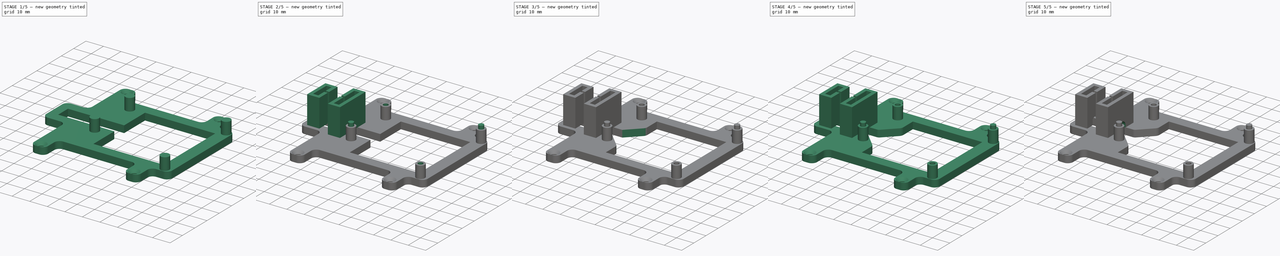
[diagram: build sequence overview — one tinted view per stage of 5, left to right]
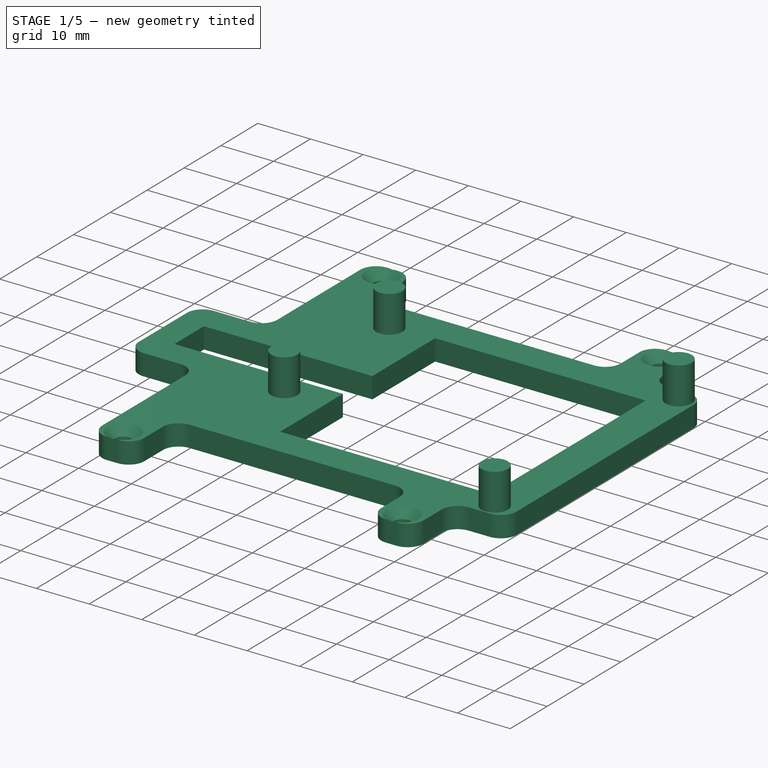
[diagram: stage 1 of 5 — iso view after this stage's code; geometry added in this stage tinted green]
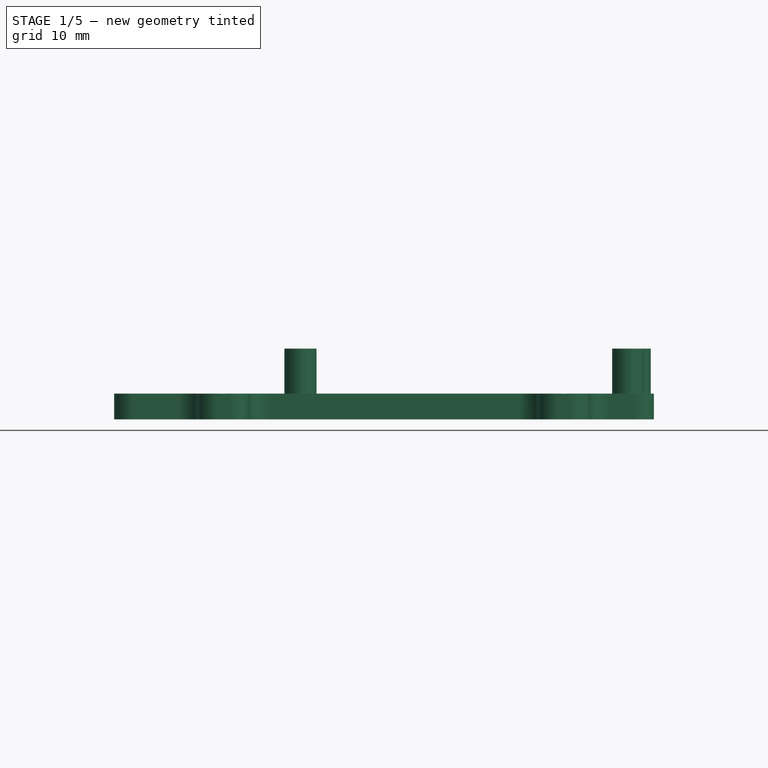
[diagram: stage 1 of 5 — front view after this stage's code; geometry added in this stage tinted green]
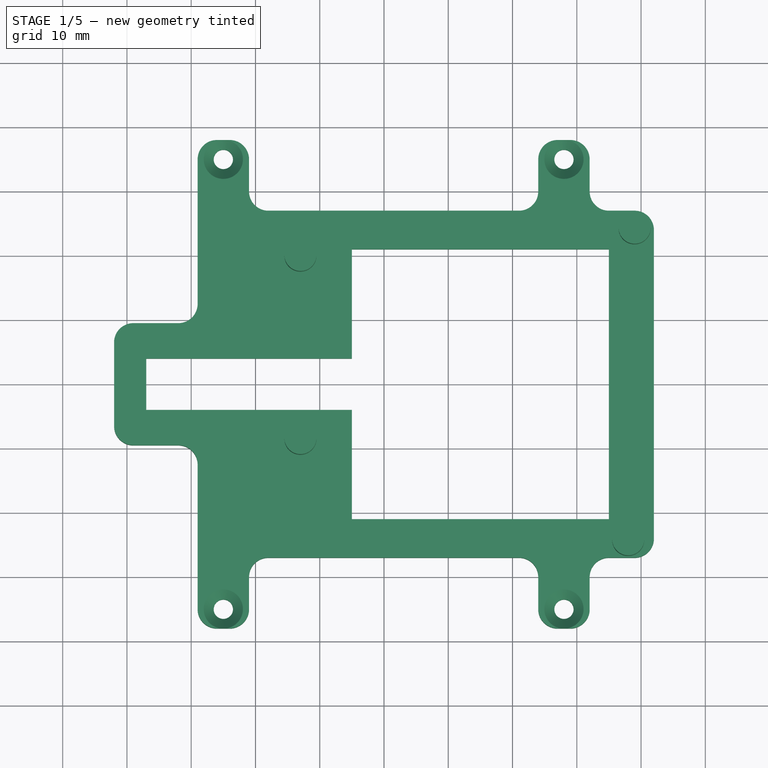
[diagram: stage 1 of 5 — top view after this stage's code; geometry added in this stage tinted green]
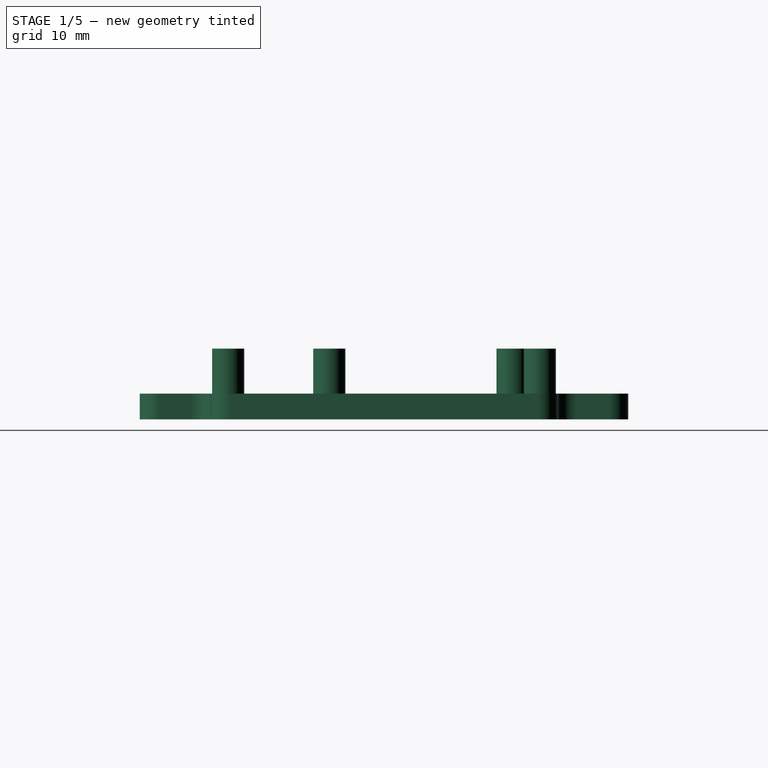
[diagram: stage 1 of 5 — right view after this stage's code; geometry added in this stage tinted green]
FCSTD DOCUMENT  (FreeCAD 0.21R33771 (Git))
Label: електронен блок
License: All rights reserved
LicenseURL: https://en.wikipedia.org/wiki/All_rights_reserved
objects: Sketcher::SketchObject×7, PartDesign::Chamfer×5, PartDesign::Pad×4, PartDesign::Fillet×4, PartDesign::Pocket×2, PartDesign::Hole×1, PartDesign::Body×1
note: 40 computed .brp shape members not serialized (recipe doc carries the construction recipe); baked Part::Feature solids carry a one-line shape summary decoded from their .brp

FEATURE [Sketcher::SketchObject] Sketch
  FullyConstrained = true
  MapMode = 5
  Support = -> [XY_Plane]
  sketch-geometry (48):
    g0: LineSegment StartX=42 StartY=-24 StartZ=0 EndX=42 EndY=24 EndZ=0
    g1: LineSegment StartX=39 StartY=27 StartZ=0 EndX=35 EndY=27 EndZ=0
    g2: LineSegment StartX=32 StartY=30 StartZ=0 EndX=32 EndY=35 EndZ=0
    g3: LineSegment StartX=29 StartY=38 StartZ=0 EndX=27 EndY=38 EndZ=0
    g4: LineSegment StartX=-29 StartY=35 StartZ=0 EndX=-29 EndY=12.5 EndZ=0
    g5: LineSegment StartX=-32 StartY=9.5 StartZ=0 EndX=-39 EndY=9.5 EndZ=0
    g6: LineSegment StartX=-29 StartY=-12.5 StartZ=0 EndX=-29 EndY=-35 EndZ=0
    g7: LineSegment StartX=-26 StartY=-38 StartZ=0 EndX=-24 EndY=-38 EndZ=0
    g8: LineSegment StartX=32 StartY=-35 StartZ=0 EndX=32 EndY=-30 EndZ=0
    g9: LineSegment StartX=35 StartY=-27 StartZ=0 EndX=39 EndY=-27 EndZ=0
    g10: ArcOfCircle CenterX=29 CenterY=35 CenterZ=0 NormalX=0 NormalY=0 NormalZ=1 AngleXU=0 Radius=3 StartAngle=2e-16 EndAngle=1.5708
    g11: ArcOfCircle CenterX=-26 CenterY=35 CenterZ=0 NormalX=0 NormalY=0 NormalZ=1 AngleXU=0 Radius=3 StartAngle=1.5708 EndAngle=3.14159
    g12: ArcOfCircle CenterX=35 CenterY=30 CenterZ=0 NormalX=0 NormalY=0 NormalZ=1 AngleXU=0 Radius=3 StartAngle=3.14159 EndAngle=4.71239
    g13: ArcOfCircle CenterX=39 CenterY=24 CenterZ=0 NormalX=0 NormalY=0 NormalZ=1 AngleXU=0 Radius=3 StartAngle=1e-16 EndAngle=1.5708
    g14: ArcOfCircle CenterX=39 CenterY=-24 CenterZ=0 NormalX=0 NormalY=0 NormalZ=1 AngleXU=0 Radius=3 StartAngle=4.71239 EndAngle=6.28319
    g15: ArcOfCircle CenterX=35 CenterY=-30 CenterZ=0 NormalX=0 NormalY=0 NormalZ=1 AngleXU=0 Radius=3 StartAngle=1.5708 EndAngle=3.14159
    g16: ArcOfCircle CenterX=29 CenterY=-35 CenterZ=0 NormalX=0 NormalY=0 NormalZ=1 AngleXU=0 Radius=3 StartAngle=4.71239 EndAngle=6.28319
    g17: ArcOfCircle CenterX=-26 CenterY=-35 CenterZ=0 NormalX=0 NormalY=0 NormalZ=1 AngleXU=0 Radius=3 StartAngle=3.14159 EndAngle=4.71239
    g18: ArcOfCircle CenterX=-32 CenterY=-12.5 CenterZ=0 NormalX=0 NormalY=0 NormalZ=1 AngleXU=0 Radius=3 StartAngle=0 EndAngle=1.5708
    g19: ArcOfCircle CenterX=-32 CenterY=12.5 CenterZ=0 NormalX=0 NormalY=0 NormalZ=1 AngleXU=0 Radius=3 StartAngle=4.71239 EndAngle=6.28319
    g20: LineSegment StartX=-32 StartY=-9.5 StartZ=0 EndX=-39 EndY=-9.5 EndZ=0
    g21: LineSegment StartX=-42 StartY=-6.5 StartZ=0 EndX=-42 EndY=6.5 EndZ=0
    g22: ArcOfCircle CenterX=-39 CenterY=6.5 CenterZ=0 NormalX=0 NormalY=0 NormalZ=1 AngleXU=0 Radius=3 StartAngle=1.5708 EndAngle=3.14159
    g23: ArcOfCircle CenterX=-39 CenterY=-6.5 CenterZ=0 NormalX=0 NormalY=0 NormalZ=1 AngleXU=0 Radius=3 StartAngle=3.14159 EndAngle=4.71239
    g24: LineSegment StartX=-21 StartY=35 StartZ=0 EndX=-21 EndY=30 EndZ=0
    g25: LineSegment StartX=-18 StartY=27 StartZ=0 EndX=21 EndY=27 EndZ=0
    g26: LineSegment StartX=24 StartY=30 StartZ=0 EndX=24 EndY=35 EndZ=0
    g27: LineSegment StartX=-24 StartY=38 StartZ=0 EndX=-26 EndY=38 EndZ=0
    g28: LineSegment StartX=-21 StartY=-35 StartZ=0 EndX=-21 EndY=-30 EndZ=0
    g29: LineSegment StartX=-18 StartY=-27 StartZ=0 EndX=21 EndY=-27 EndZ=0
    g30: LineSegment StartX=24 StartY=-30 StartZ=0 EndX=24 EndY=-35 EndZ=0
    g31: LineSegment StartX=27 StartY=-38 StartZ=0 EndX=29 EndY=-38 EndZ=0
    g32: ArcOfCircle CenterX=-24 CenterY=35 CenterZ=0 NormalX=0 NormalY=0 NormalZ=1 AngleXU=0 Radius=3 StartAngle=4e-16 EndAngle=1.5708
    g33: ArcOfCircle CenterX=27 CenterY=35 CenterZ=0 NormalX=0 NormalY=0 NormalZ=1 AngleXU=0 Radius=3 StartAngle=1.5708 EndAngle=3.14159
    g34: ArcOfCircle CenterX=-24 CenterY=-35 CenterZ=0 NormalX=0 NormalY=0 NormalZ=1 AngleXU=0 Radius=3 StartAngle=4.71239 EndAngle=6.28319
    g35: ArcOfCircle CenterX=27 CenterY=-35 CenterZ=0 NormalX=0 NormalY=0 NormalZ=1 AngleXU=0 Radius=3 StartAngle=3.14159 EndAngle=4.71239
    g36: ArcOfCircle CenterX=21 CenterY=-30 CenterZ=0 NormalX=0 NormalY=0 NormalZ=1 AngleXU=0 Radius=3 StartAngle=1e-16 EndAngle=1.5708
    g37: ArcOfCircle CenterX=-18 CenterY=-30 CenterZ=0 NormalX=0 NormalY=0 NormalZ=1 AngleXU=0 Radius=3 StartAngle=1.5708 EndAngle=3.14159
    g38: ArcOfCircle CenterX=-18 CenterY=30 CenterZ=0 NormalX=0 NormalY=0 NormalZ=1 AngleXU=0 Radius=3 StartAngle=3.14159 EndAngle=4.71239
    g39: ArcOfCircle CenterX=21 CenterY=30 CenterZ=0 NormalX=0 NormalY=0 NormalZ=1 AngleXU=0 Radius=3 StartAngle=4.71239 EndAngle=6.28319
    g40: LineSegment StartX=-5 StartY=21 StartZ=0 EndX=35 EndY=21 EndZ=0
    g41: LineSegment StartX=35 StartY=21 StartZ=0 EndX=35 EndY=-21 EndZ=0
    g42: LineSegment StartX=35 StartY=-21 StartZ=0 EndX=-5 EndY=-21 EndZ=0
    g43: LineSegment StartX=-5 StartY=-21 StartZ=0 EndX=-5 EndY=-4 EndZ=0
    g44: LineSegment StartX=-37 StartY=4 StartZ=0 EndX=-5 EndY=4 EndZ=0
    g45: LineSegment StartX=-5 StartY=-4 StartZ=0 EndX=-37 EndY=-4 EndZ=0
    g46: LineSegment StartX=-37 StartY=-4 StartZ=0 EndX=-37 EndY=4 EndZ=0
    g47: LineSegment StartX=-5 StartY=4 StartZ=0 EndX=-5 EndY=21 EndZ=0
  constraints (125):
    c: Vertical(g0)
    c: Horizontal(g1)
    c: Vertical(g2)
    c: Horizontal(g3)
    c: Vertical(g4)
    c: Horizontal(g5)
    c: Vertical(g6)
    c: Horizontal(g7)
    c: Vertical(g8)
    c: Horizontal(g9)
    c: Tangent(g3,g10) = -1.5708
    c: Tangent(g2,g10) = -1.5708
    c: Radius(g10) = 3
    c: DistanceX(g-1,g2) = 32
    c: DistanceY(g-1,g3) = 38
    c: Tangent(g4,g11) = -1.5708
    c: Coincident(g27,g11) = -1.5708
    c: Radius(g11) = 3
    c: Tangent(g2,g12) = 1.5708
    c: Tangent(g1,g12) = 1.5708
    c: Radius(g12) = 3
    c: DistanceY(g-1,g1) = 27
    c: Tangent(g1,g13) = -1.5708
    c: Tangent(g0,g13) = -1.5708
    c: Radius(g13) = 3
    c: DistanceX(g-1,g0) = 42
    c: Tangent(g9,g14) = -1.5708
    c: Tangent(g0,g14) = -1.5708
    c: Tangent(g9,g15) = 1.5708
    c: Tangent(g8,g15) = 1.5708
    c: Radius(g14) = 3
    c: Radius(g15) = 3
    c: Symmetric(g9,g1,g-1)
    c: Coincident(g31,g16) = -1.5708
    c: Tangent(g8,g16) = -1.5708
    c: Radius(g16) = 3
    c: Tangent(g7,g17) = -1.5708
    c: Tangent(g6,g17) = -1.5708
    c: Tangent(g6,g18) = 1.5708
    c: Tangent(g5,g19) = 1.5708
    c: Tangent(g4,g19) = 1.5708
    c: Radius(g19) = 3
    c: Radius(g18) = 3
    c: Radius(g17) = 3
    c: DistanceY(g-1,g5) = 9.5
    c: DistanceX(g6,g-1) = 29
    c: Tangent(g18,g20) = -1.5708
    c: Vertical(g21)
    c: Tangent(g5,g22) = -1.5708
    c: Tangent(g21,g22) = 1.5708
    c: Tangent(g21,g23) = 1.5708
    c: Tangent(g20,g23) = 1.5708
    c: Equal(g23,g22)
    c: Radius(g23) = 3
    c: Horizontal(g20)
    c: Vertical(g24)
    c: Horizontal(g25)
    c: Vertical(g26)
    c: Vertical(g28)
    c: Horizontal(g29)
    c: Vertical(g30)
    c: Tangent(g27,g32) = -1.5708
    c: Tangent(g24,g32) = 1.5708
    c: Radius(g32) = 3
    c: Tangent(g26,g33) = 1.5708
    c: Tangent(g3,g33) = -1.5708
    c: Tangent(g7,g34) = -1.5708
    c: Tangent(g28,g34) = -1.5708
    c: Tangent(g30,g35) = -1.5708
    c: Tangent(g31,g35) = -1.5708
    c: Tangent(g30,g36) = 1.5708
    c: Tangent(g29,g36) = 1.5708
    c: Tangent(g28,g37) = 1.5708
    c: Tangent(g29,g37) = 1.5708
    c: Tangent(g24,g38) = -1.5708
    c: Tangent(g25,g38) = -1.5708
    c: Tangent(g25,g39) = -1.5708
    c: Tangent(g26,g39) = -1.5708
    c: Horizontal(g27)
    c: DistanceY(g-1,g25) = 27
    c: Radius(g33) = 3
    c: Radius(g39) = 3
    c: Radius(g38) = 3
    c: DistanceX(g26,g2) = 8
    c: DistanceX(g4,g24) = 8
    c: DistanceY(g27) = 38
    c: DistanceX(g21,g-1) = 42
    c: DistanceY(g7,g-1) = 38
    c: Radius(g34) = 3
    c: DistanceX(g30,g8) = 8
    c: Horizontal(g31)
    c: Radius(g35) = 3
    c: Radius(g37) = 3
    c: DistanceY(g29,g-1) = 27
    c: Radius(g36) = 3
    c: DistanceY(g18,g-1) = 9.5
    c: DistanceX(g6,g28) = 8
    c: DistanceY(g31,g-1) = 38
    c: DistanceX(g4,g-1) = 29
    c: Equal(g27,g7)
    c: Coincident(g40,g41)
    c: Coincident(g41,g42)
    c: Coincident(g42,g43)
    c: Coincident(g47,g40)
    c: Horizontal(g40)
    c: Horizontal(g42)
    c: Vertical(g41)
    c: Vertical(g43)
    c: DistanceX(g-1,g40) = 35
    c: DistanceY(g-1,g40) = 21
    c: DistanceY(g41,g-1) = 21
    c: DistanceX(g40,g-1) = 5
    c: Coincident(g45,g46)
    c: Coincident(g46,g44)
    c: Horizontal(g44)
    c: Horizontal(g45)
    c: Vertical(g46)
    c: DistanceX(g21,g45) = 5
    c: DistanceY(g45,g-1) = 4
    c: DistanceY(g-1,g44) = 4
    c: Coincident(g43,g45)
    c: Coincident(g47,g44)
    c: DistanceX(g44,g44) = 32
    c: Equal(g45,g44)
    c: DistanceX(g-1,g16) = 29
FEATURE [PartDesign::Pad] Pad  label="основа"
  Direction = (0,0,1)
  Length = 4
  Length2 = 10
  Profile = -> Sketch
  ReferenceAxis = -> Sketch [N_Axis]
  Type = 0
FEATURE [Sketcher::SketchObject] Sketch001
  FullyConstrained = false
  MapMode = 5
  Placement = pos=(0,0,4) rot=(0,0,1;0rad)
  Support = -> [Pad]
  sketch-geometry (4):
    g0: Circle CenterX=-25 CenterY=35 CenterZ=0 NormalX=0 NormalY=0 NormalZ=1 AngleXU=0 Radius=1.5
    g1: Circle CenterX=28 CenterY=35 CenterZ=0 NormalX=0 NormalY=0 NormalZ=1 AngleXU=0 Radius=1.5
    g2: Circle CenterX=-25 CenterY=-35 CenterZ=0 NormalX=0 NormalY=0 NormalZ=1 AngleXU=0 Radius=1.5
    g3: Circle CenterX=28 CenterY=-35 CenterZ=0 NormalX=0 NormalY=0 NormalZ=1 AngleXU=0 Radius=1.5
  constraints (9):
    c: DistanceY(g-1,g0) = 35
    c: DistanceX(g0,g-1) = 25
    c: Symmetric(g0,g2,g-1)
    c: Diameter(g0) = 3
    c: Equal(g0,g2)
    c: Equal(g2,g3)
    c: Equal(g3,g1)
    c: DistanceX(g-1,g1) = 28
    c: Symmetric(g1,g3,g-1)
FEATURE [PartDesign::Hole] Hole  label="Крепежни отвори"
  BaseFeature = -> Pad
  CustomThreadClearance = 0
  Depth = 25
  DepthType = 0
  Diameter = 3
  DrillForDepth = false
  DrillPoint = 1
  DrillPointAngle = 118
  HoleCutCountersinkAngle = 90
  HoleCutCustomValues = false
  HoleCutDepth = 0
  HoleCutDiameter = 6.1
  HoleCutType = 2
  ModelThread = false
  Profile = -> Sketch001
  Tapered = false
  TaperedAngle = 90
  ThreadClass = 0
  ThreadDepth = 25
  ThreadDepthType = 0
  ThreadDirection = 0
  ThreadFit = 0
  ThreadSize = 0
  ThreadType = 0
  Threaded = false
  UseCustomThreadClearance = false
FEATURE [Sketcher::SketchObject] Sketch002
  FullyConstrained = true
  MapMode = 5
  Placement = pos=(0,0,4) rot=(0,0,1;0rad)
  Support = -> [Hole]
  sketch-geometry (4):
    g0: Circle CenterX=39 CenterY=24.25 CenterZ=0 NormalX=0 NormalY=0 NormalZ=1 AngleXU=0 Radius=2.5
    g1: Circle CenterX=38 CenterY=-24.25 CenterZ=0 NormalX=0 NormalY=0 NormalZ=1 AngleXU=0 Radius=2.5
    g2: Circle CenterX=-13 CenterY=20 CenterZ=0 NormalX=0 NormalY=0 NormalZ=1 AngleXU=0 Radius=2.5
    g3: Circle CenterX=-13 CenterY=-8.5 CenterZ=0 NormalX=0 NormalY=0 NormalZ=1 AngleXU=0 Radius=2.5
  constraints (12):
    c: Equal(g2,g3)
    c: Equal(g2,g1)
    c: Equal(g2,g0)
    c: Diameter(g2) = 5
    c: DistanceX(g-1,g0) = 39
    c: DistanceY(g-1,g0) = 24.25
    c: DistanceY(g1,g-1) = 24.25
    c: DistanceX(g-1,g1) = 38
    c: DistanceY(g-1,g2) = 20
    c: DistanceY(g3,g-1) = 8.5
    c: DistanceX(g2,g-1) = 13
    c: DistanceX(g3,g-1) = 13
FEATURE [PartDesign::Pad] Pad001  label="Колонки"
  BaseFeature = -> Hole
  Direction = (0,0,1)
  Length = 7
  Length2 = 10
  Profile = -> Sketch002
  ReferenceAxis = -> Sketch002 [N_Axis]
  Type = 0
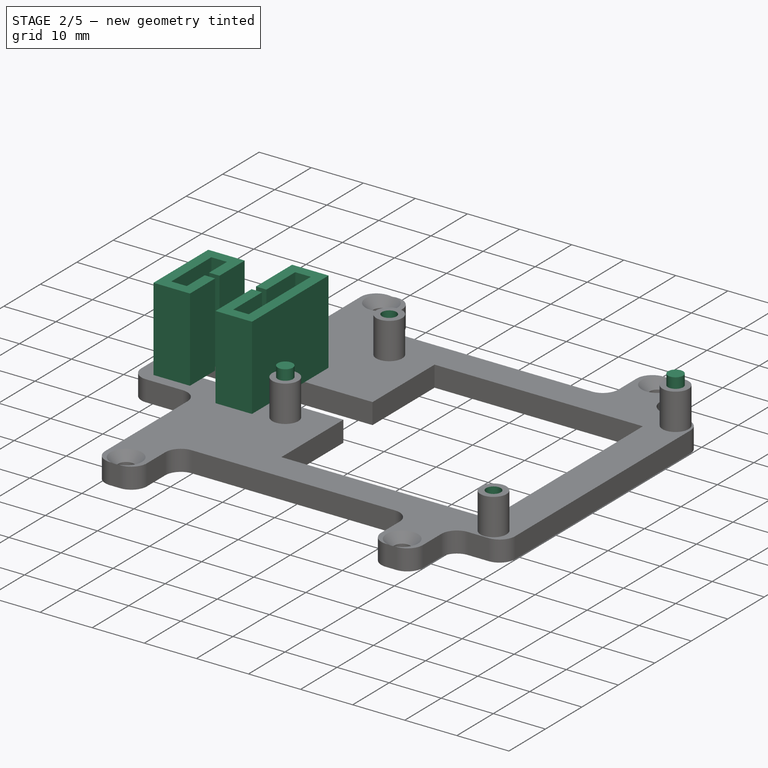
[diagram: stage 2 of 5 — iso view after this stage's code; geometry added in this stage tinted green]
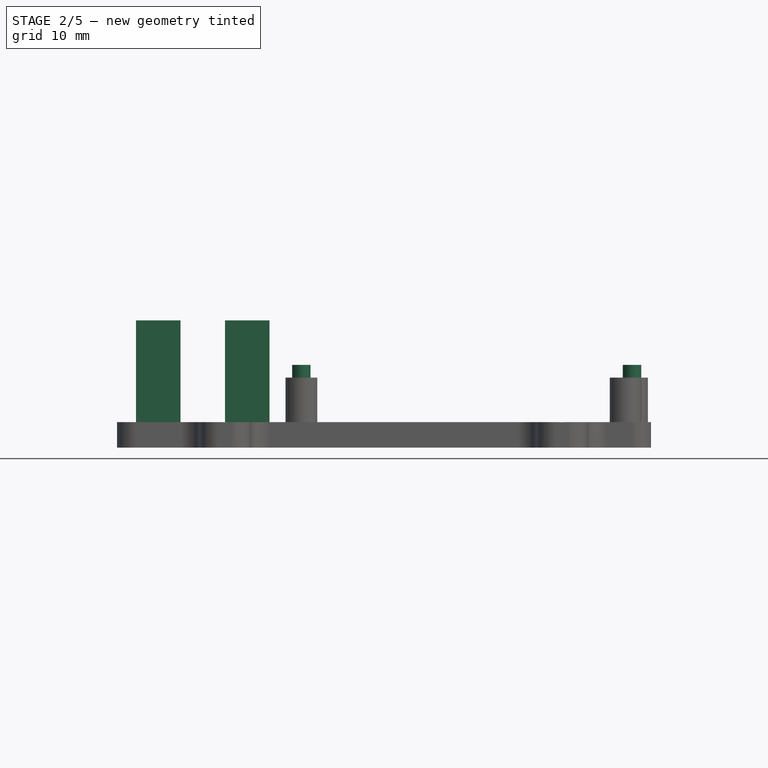
[diagram: stage 2 of 5 — front view after this stage's code; geometry added in this stage tinted green]
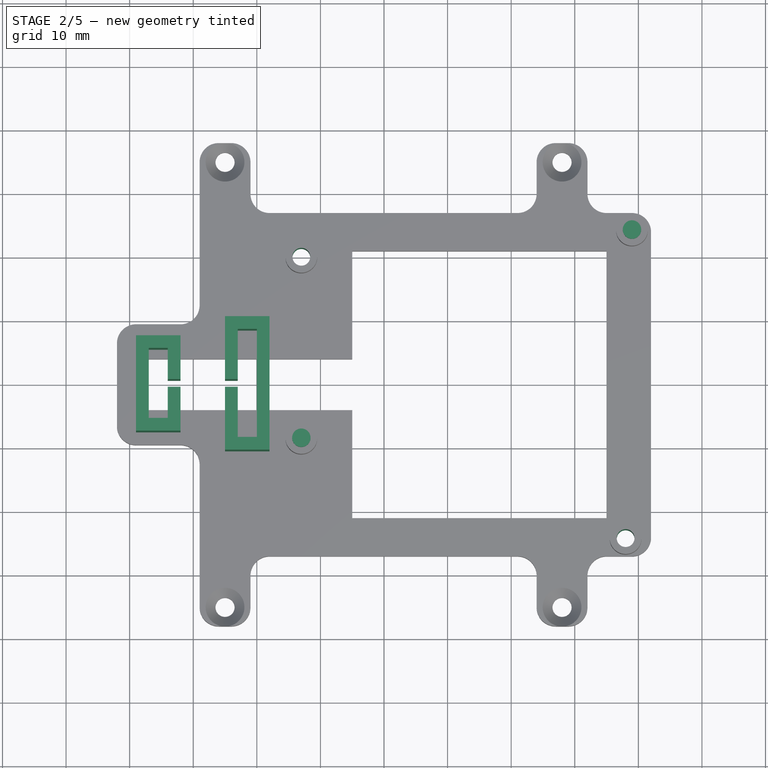
[diagram: stage 2 of 5 — top view after this stage's code; geometry added in this stage tinted green]
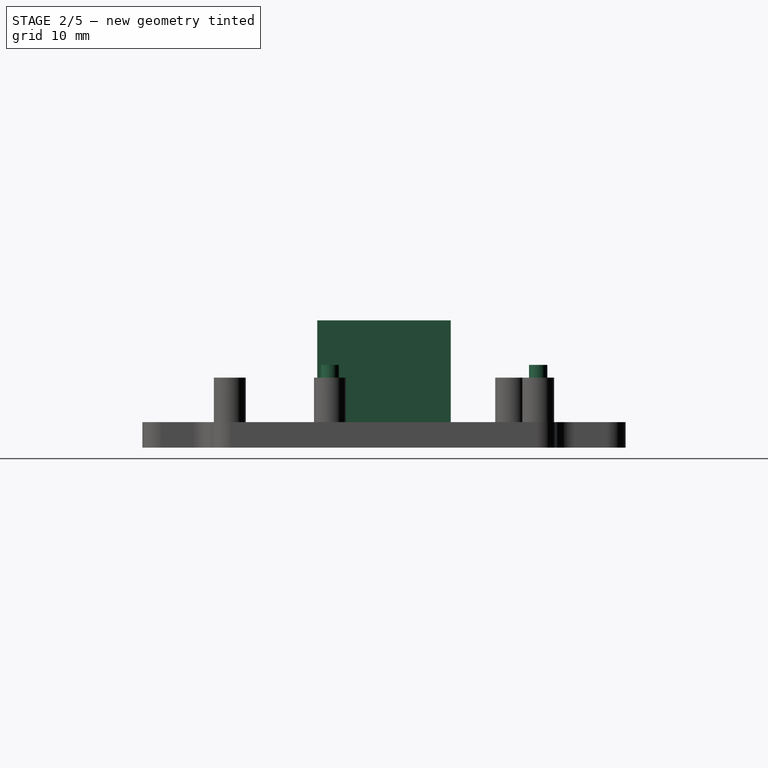
[diagram: stage 2 of 5 — right view after this stage's code; geometry added in this stage tinted green]
FEATURE [Sketcher::SketchObject] Sketch003
  FullyConstrained = true
  MapMode = 5
  Placement = pos=(0,0,11) rot=(0,0,1;0rad)
  Support = -> [Pad001]
  sketch-geometry (2):
    g0: Circle CenterX=-13 CenterY=-8.5 CenterZ=0 NormalX=0 NormalY=0 NormalZ=1 AngleXU=0 Radius=1.45
    g1: Circle CenterX=39 CenterY=24.25 CenterZ=0 NormalX=0 NormalY=0 NormalZ=1 AngleXU=0 Radius=1.45
  constraints (6):
    c: DistanceX(g0,g-1) = 13
    c: DistanceY(g0,g-1) = 8.5
    c: Diameter(g0) = 2.9
    c: DistanceX(g-1,g1) = 39
    c: DistanceY(g-1,g1) = 24.25
    c: Diameter(g1) = 2.9
FEATURE [PartDesign::Pad] Pad002  label="Щифтове"
  BaseFeature = -> Pad001
  Direction = (0,0,1)
  Length = 2
  Length2 = 10
  Profile = -> Sketch003
  ReferenceAxis = -> Sketch003 [N_Axis]
  Type = 0
FEATURE [Sketcher::SketchObject] Sketch004
  FullyConstrained = true
  MapMode = 5
  Placement = pos=(0,0,11) rot=(0,0,1;0rad)
  Support = -> [Pad002]
  sketch-geometry (2):
    g0: Circle CenterX=-13 CenterY=20 CenterZ=0 NormalX=0 NormalY=0 NormalZ=1 AngleXU=0 Radius=1.4
    g1: Circle CenterX=38 CenterY=-24.25 CenterZ=0 NormalX=0 NormalY=0 NormalZ=1 AngleXU=0 Radius=1.4
  constraints (6):
    c: DistanceX(g0,g-1) = 13
    c: DistanceY(g-1,g0) = 20
    c: Diameter(g0) = 2.8
    c: DistanceY(g1,g-1) = 24.25
    c: DistanceX(g-1,g1) = 38
    c: Diameter(g1) = 2.8
FEATURE [PartDesign::Pocket] Pocket
  BaseFeature = -> Pad002
  Direction = (0,0,-1)
  Length = 11
  Length2 = 5
  Profile = -> Sketch004
  ReferenceAxis = -> Sketch004 [N_Axis]
  Type = 0
FEATURE [Sketcher::SketchObject] Sketch005
  FullyConstrained = true
  MapMode = 5
  Placement = pos=(0,0,4) rot=(0,0,1;0rad)
  Support = -> [Pocket]
  sketch-geometry (24):
    g0: LineSegment StartX=-39 StartY=7.5 StartZ=0 EndX=-32 EndY=7.5 EndZ=0
    g1: LineSegment StartX=-32 StartY=7.5 StartZ=0 EndX=-32 EndY=0.6 EndZ=0
    g2: LineSegment StartX=-32 StartY=-7.5 StartZ=0 EndX=-39 EndY=-7.5 EndZ=0
    g3: LineSegment StartX=-39 StartY=-7.5 StartZ=0 EndX=-39 EndY=7.5 EndZ=0
    g4: LineSegment StartX=-37 StartY=5.5 StartZ=0 EndX=-34 EndY=5.5 EndZ=0
    g5: LineSegment StartX=-34 StartY=5.5 StartZ=0 EndX=-34 EndY=0.6 EndZ=0
    g6: LineSegment StartX=-34 StartY=-5.5 StartZ=0 EndX=-37 EndY=-5.5 EndZ=0
    g7: LineSegment StartX=-37 StartY=-5.5 StartZ=0 EndX=-37 EndY=5.5 EndZ=0
    g8: LineSegment StartX=-23 StartY=8.5 StartZ=0 EndX=-20 EndY=8.5 EndZ=0
    g9: LineSegment StartX=-20 StartY=8.5 StartZ=0 EndX=-20 EndY=-8.5 EndZ=0
    g10: LineSegment StartX=-20 StartY=-8.5 StartZ=0 EndX=-23 EndY=-8.5 EndZ=0
    g11: LineSegment StartX=-23 StartY=-8.5 StartZ=0 EndX=-23 EndY=-0.6 EndZ=0
    g12: LineSegment StartX=-25 StartY=10.5 StartZ=0 EndX=-18 EndY=10.5 EndZ=0
    g13: LineSegment StartX=-18 StartY=10.5 StartZ=0 EndX=-18 EndY=-10.5 EndZ=0
    g14: LineSegment StartX=-18 StartY=-10.5 StartZ=0 EndX=-25 EndY=-10.5 EndZ=0
    g15: LineSegment StartX=-25 StartY=-10.5 StartZ=0 EndX=-25 EndY=-0.6 EndZ=0
    g16: LineSegment StartX=-34 StartY=0.6 StartZ=0 EndX=-32 EndY=0.6 EndZ=0
    g17: LineSegment StartX=-34 StartY=-0.6 StartZ=0 EndX=-32 EndY=-0.6 EndZ=0
    g18: LineSegment StartX=-32 StartY=-0.6 StartZ=0 EndX=-32 EndY=-7.5 EndZ=0
    g19: LineSegment StartX=-34 StartY=-0.6 StartZ=0 EndX=-34 EndY=-5.5 EndZ=0
    g20: LineSegment StartX=-25 StartY=-0.6 StartZ=0 EndX=-23 EndY=-0.6 EndZ=0
    g21: LineSegment StartX=-23 StartY=0.6 StartZ=0 EndX=-25 EndY=0.6 EndZ=0
    g22: LineSegment StartX=-25 StartY=0.6 StartZ=0 EndX=-25 EndY=10.5 EndZ=0
    g23: LineSegment StartX=-23 StartY=0.6 StartZ=0 EndX=-23 EndY=8.5 EndZ=0
  constraints (72):
    c: Coincident(g0,g1)
    c: Coincident(g18,g2)
    c: Coincident(g2,g3)
    c: Coincident(g3,g0)
    c: Horizontal(g0)
    c: Horizontal(g2)
    c: Vertical(g1)
    c: Vertical(g3)
    c: Coincident(g4,g5)
    c: Coincident(g19,g6)
    c: Coincident(g6,g7)
    c: Coincident(g7,g4)
    c: Horizontal(g4)
    c: Horizontal(g6)
    c: Vertical(g5)
    c: Vertical(g7)
    c: DistanceY(g7,g7) = 11
    c: DistanceX(g4,g4) = 3
    c: DistanceX(g6,g-1) = 37
    c: DistanceY(g-1,g4) = 5.5
    c: DistanceX(g2,g6) = 2
    c: DistanceY(g2,g6) = 2
    c: DistanceY(g4,g0) = 2
    c: DistanceX(g4,g0) = 2
    c: Coincident(g8,g9)
    c: Coincident(g9,g10)
    c: Coincident(g10,g11)
    c: Coincident(g23,g8)
    c: Horizontal(g8)
    c: Horizontal(g10)
    c: Vertical(g9)
    c: Vertical(g11)
    c: Coincident(g12,g13)
    c: Coincident(g13,g14)
    c: Coincident(g14,g15)
    c: Coincident(g22,g12)
    c: Horizontal(g12)
    c: Horizontal(g14)
    c: Vertical(g13)
    c: Vertical(g15)
    c: DistanceX(g10,g10) = 3
    c: DistanceY(g9,g9) = 17
    c: DistanceY(g-1,g12) = 10.5
    c: DistanceX(g8,g12) = 2
    c: DistanceY(g8,g12) = 2
    c: DistanceX(g12,g8) = 2
    c: DistanceY(g14,g10) = 2
    c: DistanceX(g13,g-1) = 18
    c: Horizontal(g16)
    c: Horizontal(g17)
    c: DistanceY(g17,g16) = 1.2
    c: DistanceY(g-1,g16) = 0.6
    c: Coincident(g1,g16)
    c: Coincident(g18,g17)
    c: Coincident(g5,g16)
    c: Coincident(g19,g17)
    c: Horizontal(g20)
    c: Horizontal(g21)
    c: DistanceY(g20,g21) = 1.2
    c: DistanceY(g20,g-1) = 0.6
    c: Coincident(g15,g20)
    c: Coincident(g22,g21)
    c: Coincident(g11,g20)
    c: Coincident(g23,g21)
    c: Vertical(g23)
    c: Vertical(g22)
    c: DistanceX(g21,g8) = 3
    c: DistanceX(g15,g11) = 2
    c: DistanceX(g17,g17) = 2
    c: DistanceX(g6,g6) = 3
    c: Vertical(g19)
    c: Vertical(g18)
FEATURE [PartDesign::Pad] Pad003  label="слотове"
  BaseFeature = -> Pocket
  Direction = (0,0,1)
  Length = 16
  Length2 = 10
  Profile = -> Sketch005
  ReferenceAxis = -> Sketch005 [N_Axis]
  Type = 0
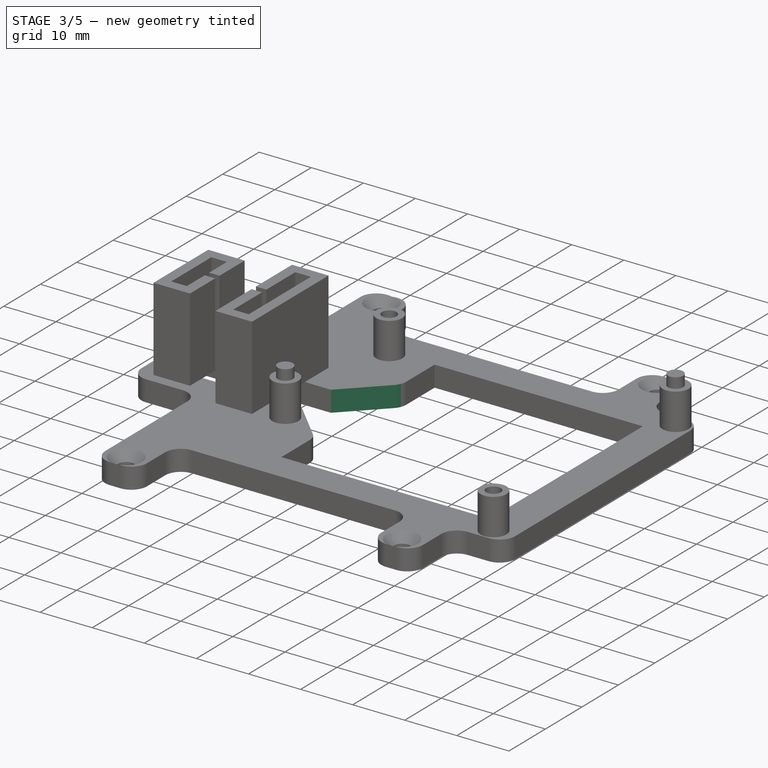
[diagram: stage 3 of 5 — iso view after this stage's code; geometry added in this stage tinted green]
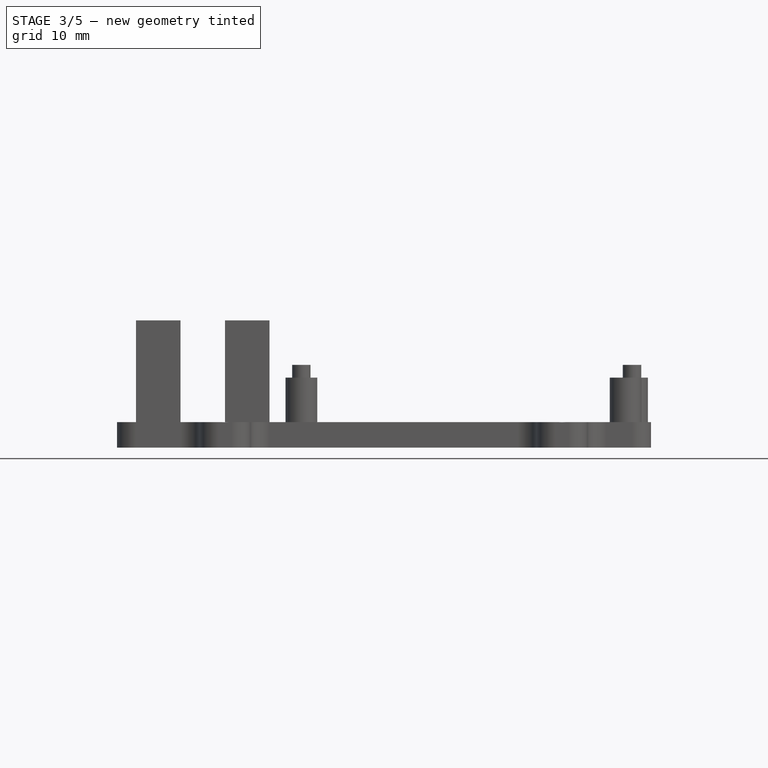
[diagram: stage 3 of 5 — front view after this stage's code; geometry added in this stage tinted green]
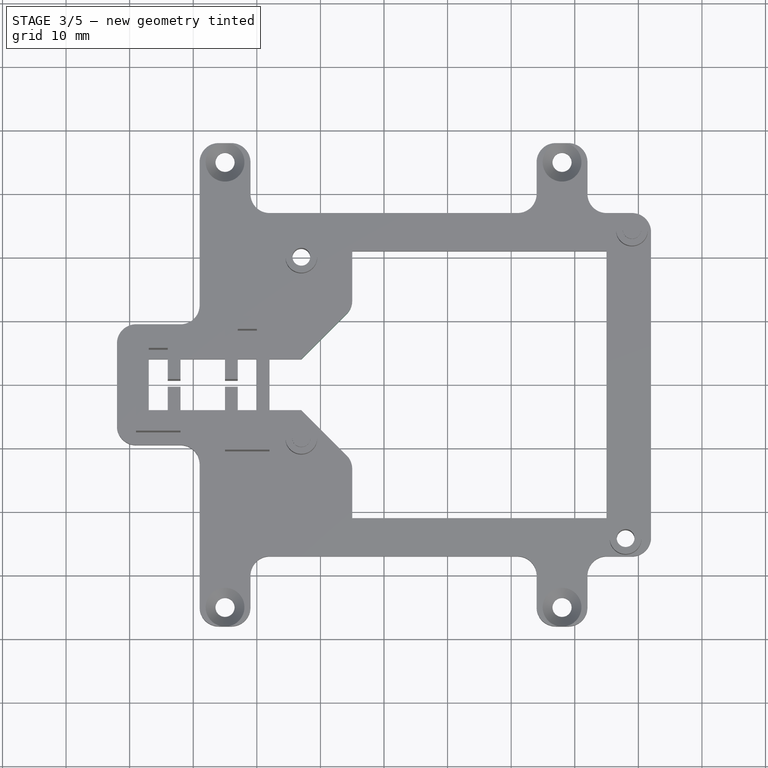
[diagram: stage 3 of 5 — top view after this stage's code; geometry added in this stage tinted green]
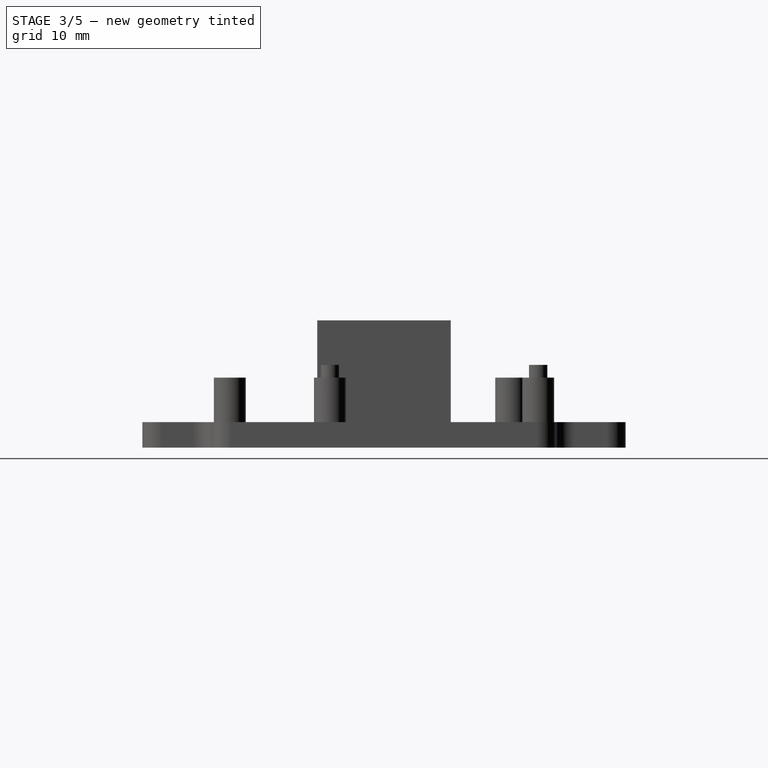
[diagram: stage 3 of 5 — right view after this stage's code; geometry added in this stage tinted green]
FEATURE [PartDesign::Chamfer] Chamfer
  Angle = 45
  Base = -> Pad003 [Edge183]
  BaseFeature = -> Pad003
  ChamferType = 0
  FlipDirection = false
  Size = 8
  Size2 = 1
  SupportTransform = false
  UseAllEdges = false
FEATURE [PartDesign::Chamfer] Chamfer001
  Angle = 45
  Base = -> Chamfer [Edge77]
  BaseFeature = -> Chamfer
  ChamferType = 0
  FlipDirection = false
  Size = 8
  Size2 = 1
  SupportTransform = false
  UseAllEdges = false
FEATURE [PartDesign::Fillet] Fillet
  Base = -> Chamfer001 [Edge66]
  BaseFeature = -> Chamfer001
  Radius = 3
  SupportTransform = false
  UseAllEdges = false
FEATURE [PartDesign::Fillet] Fillet001
  Base = -> Fillet [Edge87]
  BaseFeature = -> Fillet
  Radius = 3
  SupportTransform = false
  UseAllEdges = false
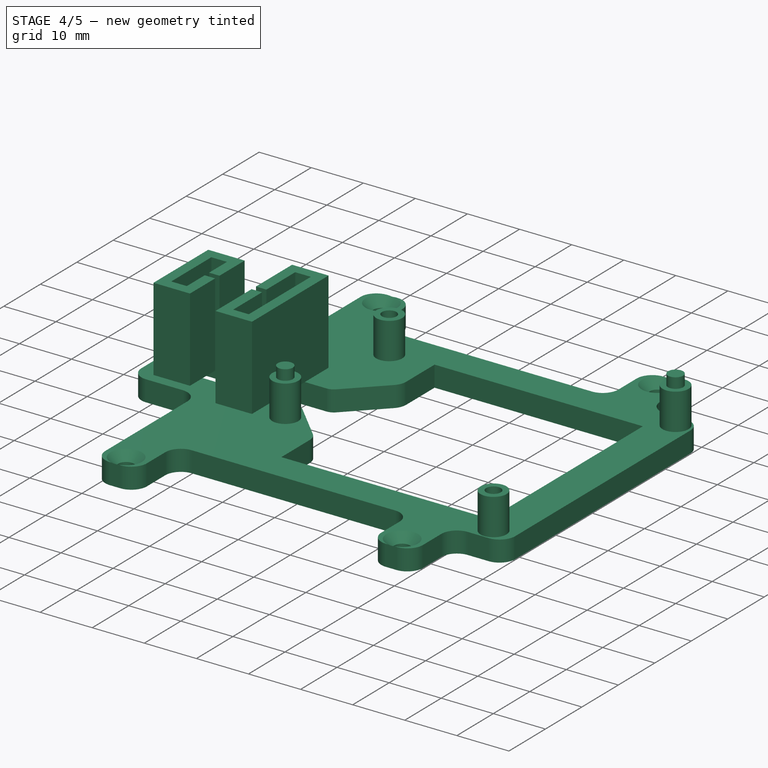
[diagram: stage 4 of 5 — iso view after this stage's code; geometry added in this stage tinted green]
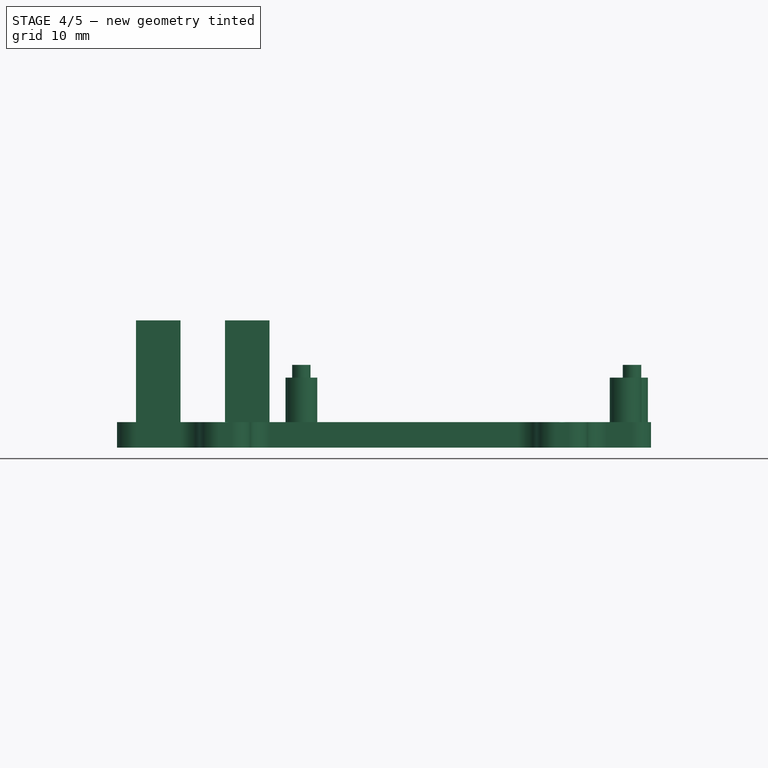
[diagram: stage 4 of 5 — front view after this stage's code; geometry added in this stage tinted green]
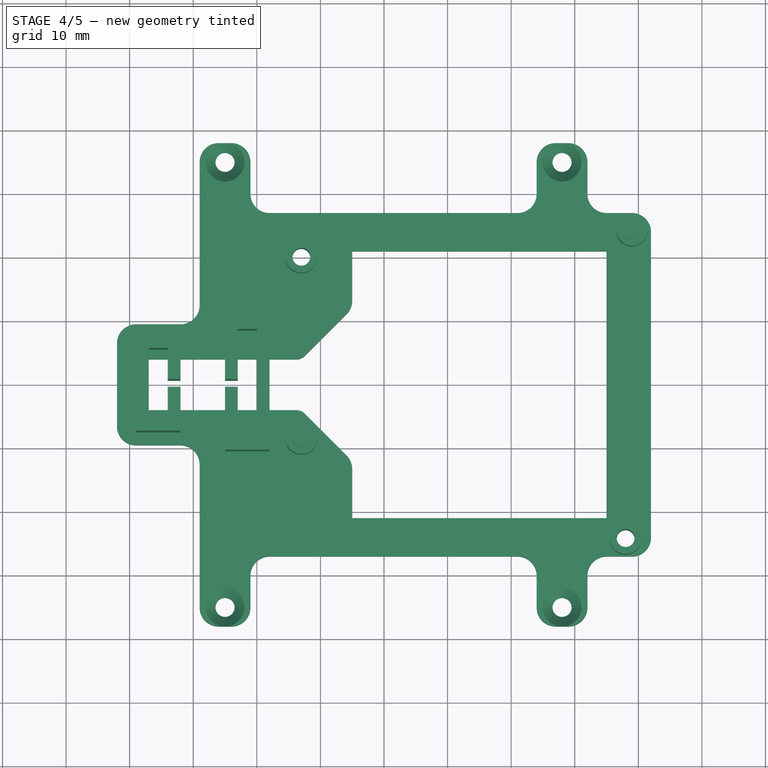
[diagram: stage 4 of 5 — top view after this stage's code; geometry added in this stage tinted green]
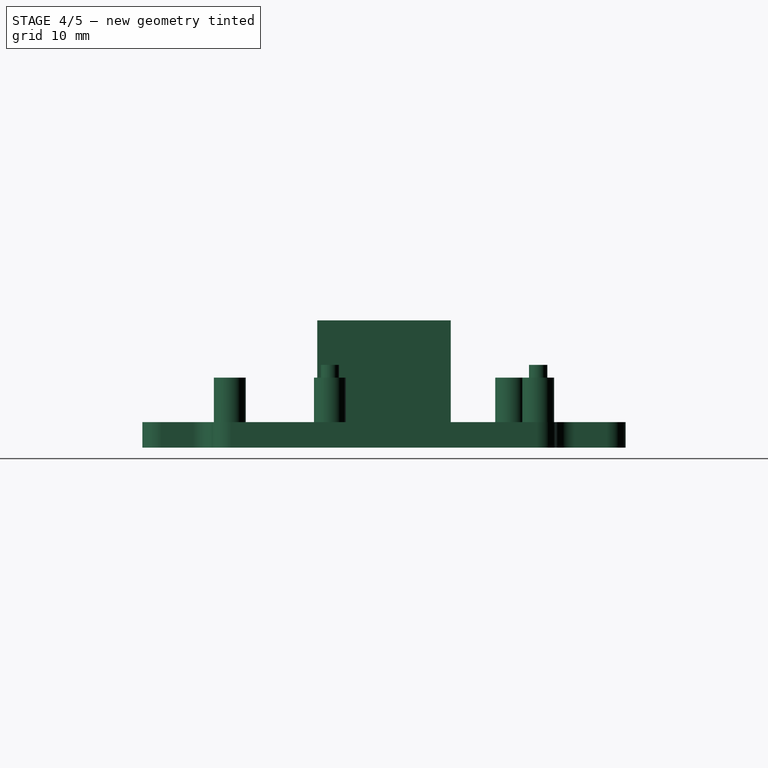
[diagram: stage 4 of 5 — right view after this stage's code; geometry added in this stage tinted green]
FEATURE [PartDesign::Fillet] Fillet002
  Base = -> Fillet001 [Edge78]
  BaseFeature = -> Fillet001
  Radius = 2
  SupportTransform = false
  UseAllEdges = false
FEATURE [PartDesign::Fillet] Fillet003
  Base = -> Fillet002 [Edge75]
  BaseFeature = -> Fillet002
  Radius = 2
  SupportTransform = false
  UseAllEdges = false
FEATURE [PartDesign::Chamfer] Chamfer003
  Angle = 45
  Base = -> Fillet003
  BaseFeature = -> Fillet003
  ChamferType = 0
  FlipDirection = false
  Size = 2
  Size2 = 1
  SupportTransform = false
  UseAllEdges = false
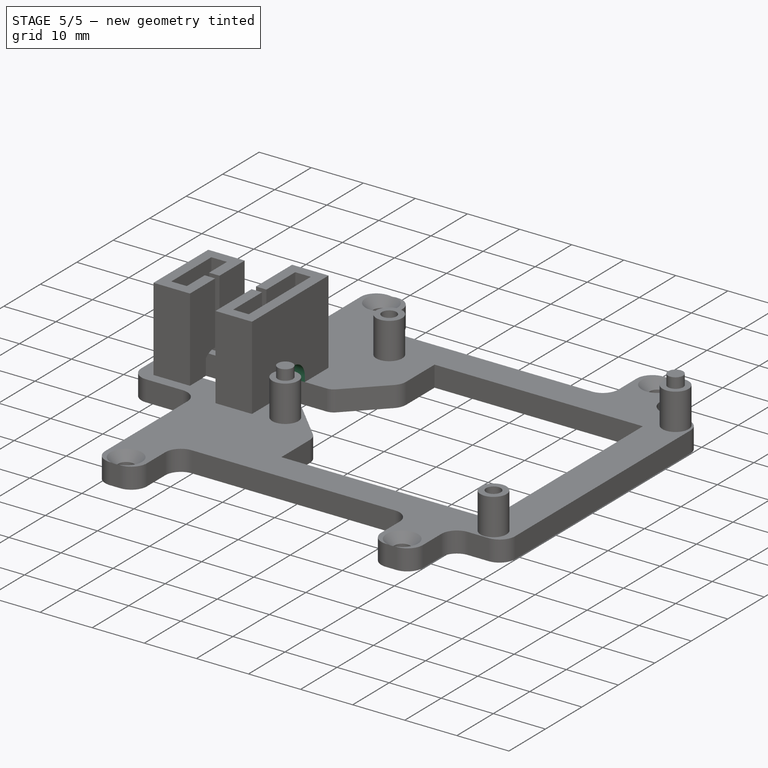
[diagram: stage 5 of 5 — iso view after this stage's code; geometry added in this stage tinted green]
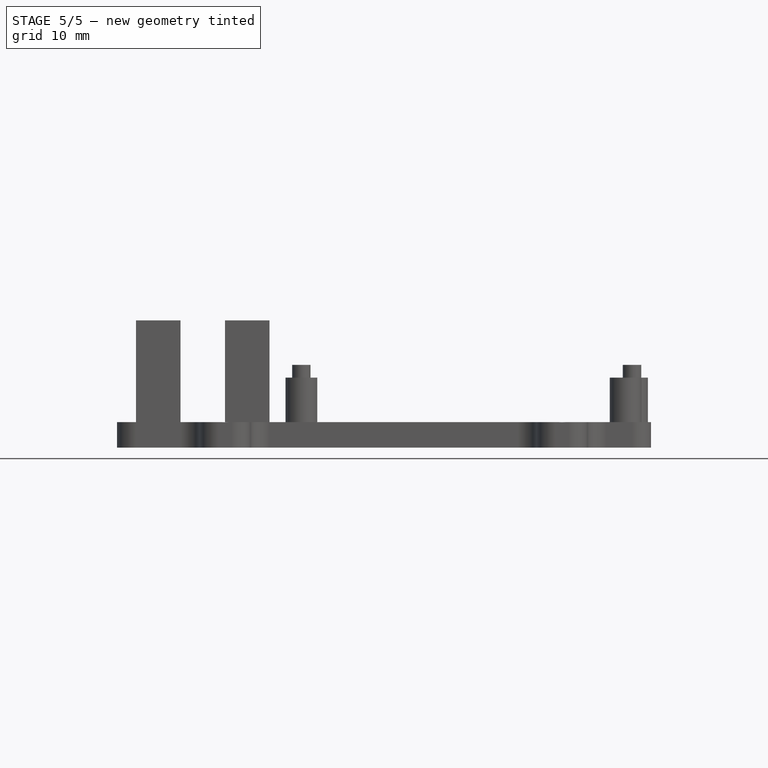
[diagram: stage 5 of 5 — front view after this stage's code; geometry added in this stage tinted green]
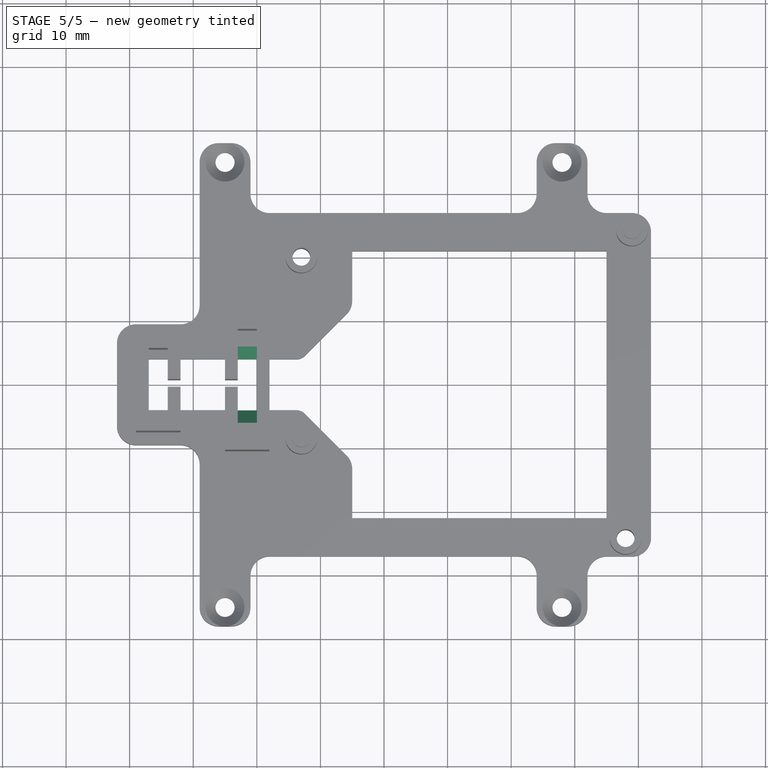
[diagram: stage 5 of 5 — top view after this stage's code; geometry added in this stage tinted green]
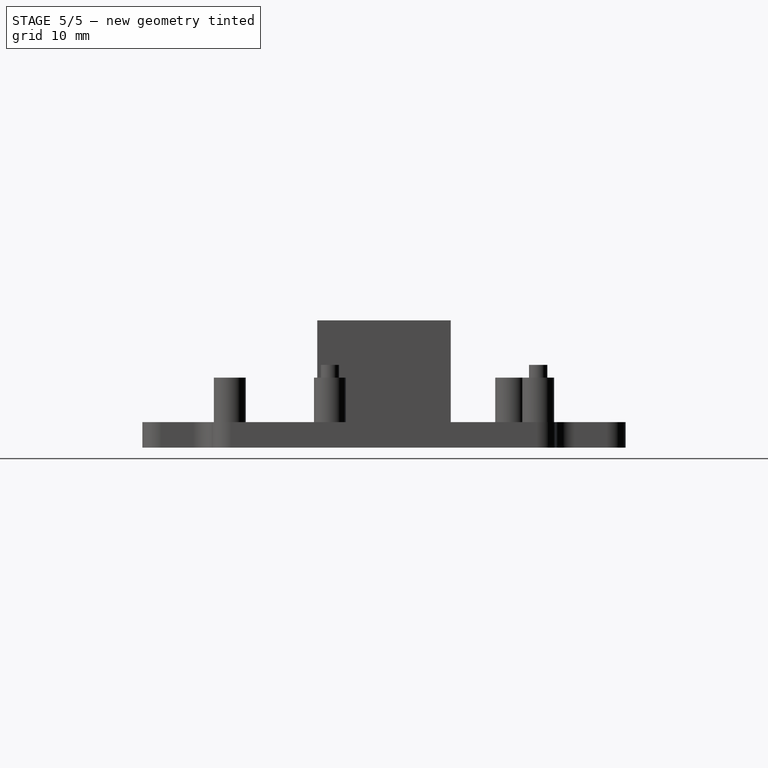
[diagram: stage 5 of 5 — right view after this stage's code; geometry added in this stage tinted green]
FEATURE [Sketcher::SketchObject] Sketch006
  FullyConstrained = true
  MapMode = 5
  Placement = pos=(-18,0,0) rot=(0.57735,0.57735,0.57735;2.0944rad)
  Support = -> [Chamfer003]
  sketch-geometry (6):
    g0: LineSegment StartX=-4 StartY=5 StartZ=0 EndX=-4 EndY=4 EndZ=0
    g1: LineSegment StartX=-4 StartY=4 StartZ=0 EndX=4 EndY=4 EndZ=0
    g2: LineSegment StartX=4 StartY=4 StartZ=0 EndX=4 EndY=5 EndZ=0
    g3: LineSegment StartX=1 StartY=8 StartZ=0 EndX=-1 EndY=8 EndZ=0
    g4: ArcOfCircle CenterX=-1 CenterY=5 CenterZ=0 NormalX=0 NormalY=0 NormalZ=1 AngleXU=0 Radius=3 StartAngle=1.5708 EndAngle=3.14159
    g5: ArcOfCircle CenterX=1 CenterY=5 CenterZ=0 NormalX=0 NormalY=0 NormalZ=1 AngleXU=0 Radius=3 StartAngle=1.3e-15 EndAngle=1.5708
  constraints (15):
    c: Coincident(g0,g1)
    c: Coincident(g1,g2)
    c: Horizontal(g3)
    c: Vertical(g0)
    c: Vertical(g2)
    c: DistanceX(g1,g1) = 8
    c: DistanceY(g-1,g1) = 4
    c: Tangent(g3,g4) = -1.5708
    c: Tangent(g0,g4) = -1.5708
    c: Tangent(g3,g5) = -1.5708
    c: Tangent(g2,g5) = -1.5708
    c: Equal(g5,g4)
    c: Diameter(g5) = 6
    c: DistanceY(g-1,g3) = 8
    c: Symmetric(g0,g1,g-2)
FEATURE [PartDesign::Pocket] Pocket001
  BaseFeature = -> Chamfer003
  Direction = (-1,0,0)
  Length = 18
  Length2 = 5
  Profile = -> Sketch006
  ReferenceAxis = -> Sketch006 [N_Axis]
  Type = 0
FEATURE [PartDesign::Chamfer] Chamfer004
  Angle = 45
  Base = -> Pocket001 [Edge68]
  BaseFeature = -> Pocket001
  ChamferType = 0
  FlipDirection = false
  Size = 2
  Size2 = 1
  SupportTransform = false
  UseAllEdges = false
FEATURE [PartDesign::Chamfer] Chamfer005
  Angle = 45
  Base = -> Chamfer004 [Edge234]
  BaseFeature = -> Chamfer004
  ChamferType = 0
  FlipDirection = false
  Size = 2
  Size2 = 1
  SupportTransform = false
  UseAllEdges = false
FEATURE [PartDesign::Body] Body
  Group = -> [Sketch,Pad,Sketch001,Hole,Sketch002,Pad001,Sketch003,Pad002,Sketch004,Pocket,Sketch005,Pad003,Chamfer,Chamfer001,Fillet,Fillet001,Fillet002,Fillet003,Chamfer003,Sketch006,Pocket001,Chamfer004,Chamfer005]
  Origin = -> Origin
  Tip = -> Chamfer005
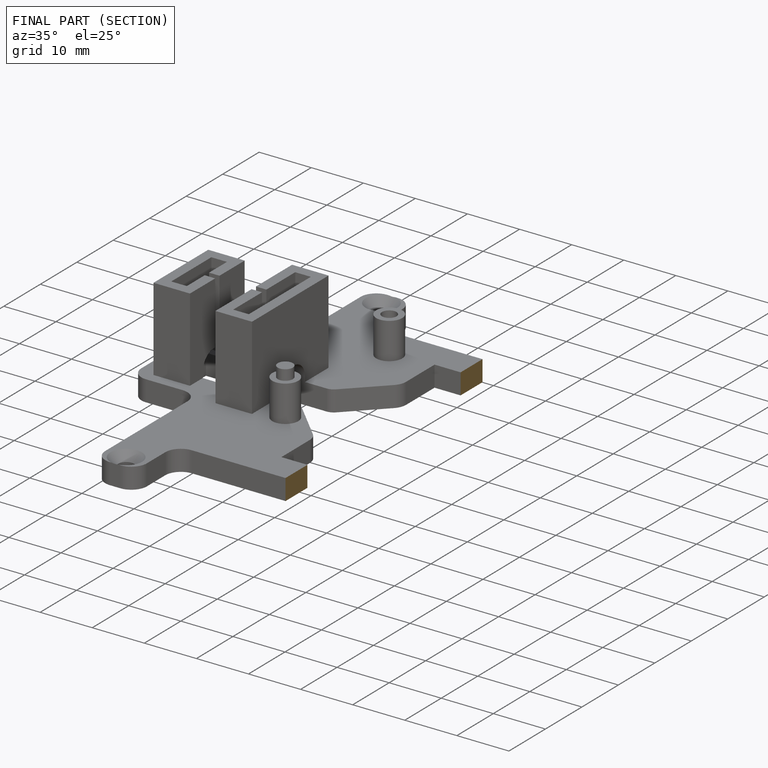
[diagram: finished part — half-section view (interior)]
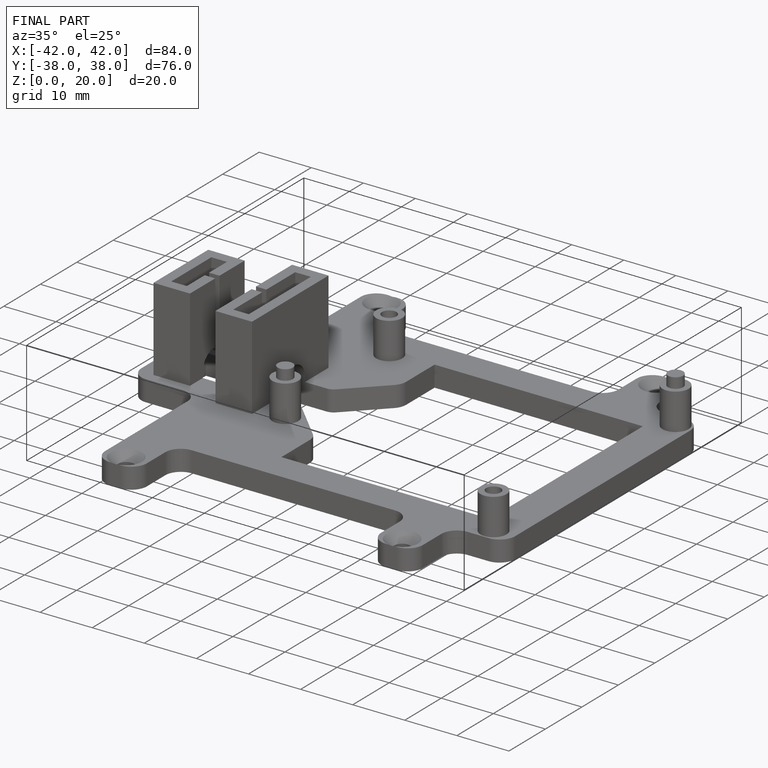
[diagram: finished part — iso view with bounding-box wireframe]
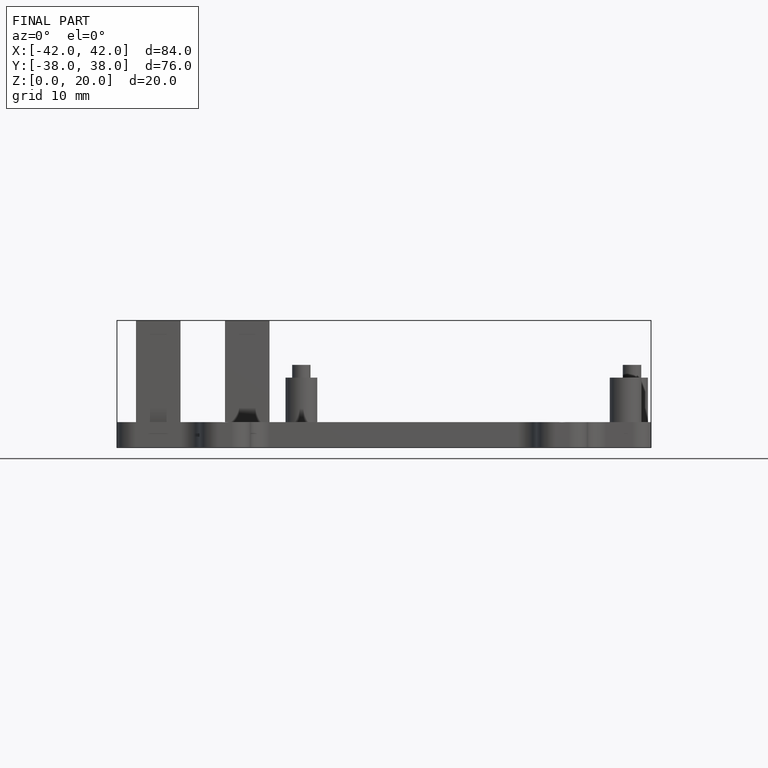
[diagram: finished part — front view with bounding-box wireframe]
